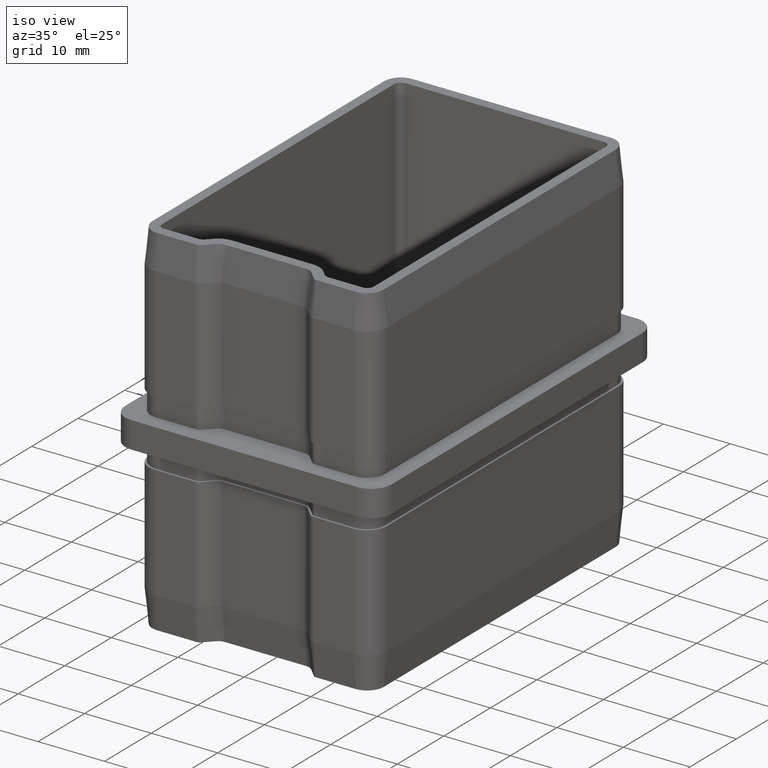
[diagram: clean part render]
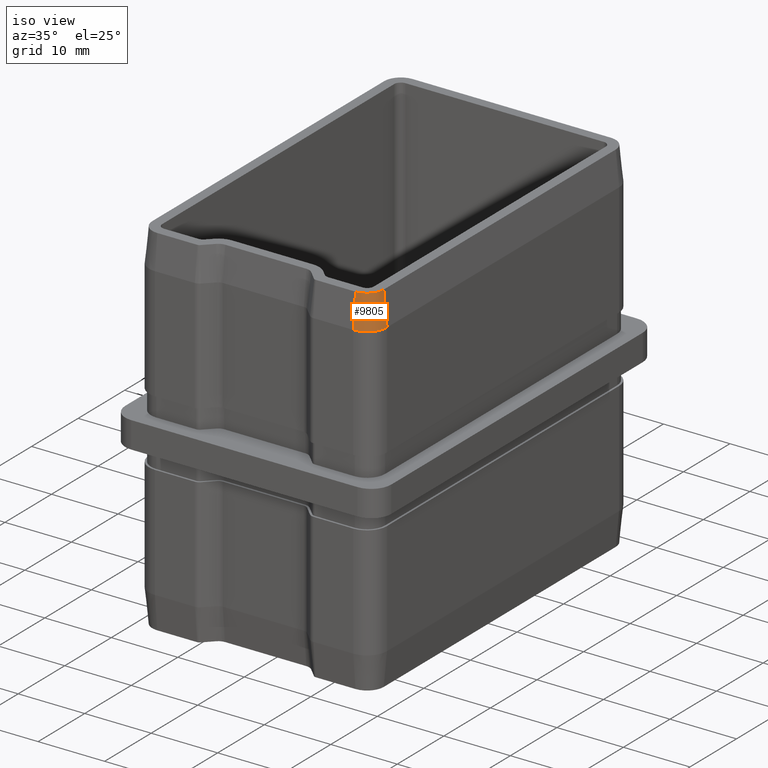
[diagram: same view with one face highlighted and labeled with its STEP entity id]
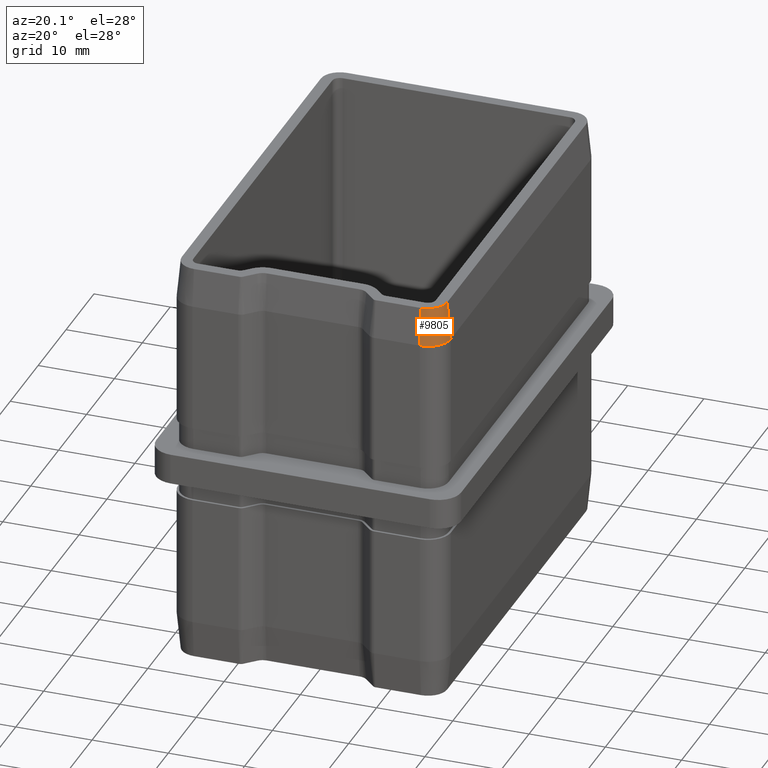
[diagram: same view with one face highlighted and labeled with its STEP entity id]
A machine part, iso view. The second image highlights one B-rep face of the part: STEP entity #9805.
A second angle (auxiliary view) of the same face is appended — the face is thin or edge-on in the first view.
In plain terms, the highlighted conical surface has half-angle 5.711 deg.
Its self-contained STEP definition (entity closure, byte-faithful):
#1188 = EDGE_CURVE ( 'NONE', #2206, #5671, #12820, .T. ) ;
#1836 = LINE ( 'NONE', #20983, #18666 ) ;
#2206 = VERTEX_POINT ( 'NONE', #16369 ) ;
#3975 = CARTESIAN_POINT ( 'NONE',  ( 14.89999999999999700, -27.39999999999998400, 26.99999999999999600 ) ) ;
#4205 = DIRECTION ( 'NONE',  ( -1.000000000000000000, 0.0000000000000000000, 0.0000000000000000000 ) ) ;
#4666 = DIRECTION ( 'NONE',  ( -1.000000000000000000, 0.0000000000000000000, 0.0000000000000000000 ) ) ;
#5648 = LINE ( 'NONE', #3975, #20956 ) ;
#5671 = VERTEX_POINT ( 'NONE', #6476 ) ;
#6137 = DIRECTION ( 'NONE',  ( -0.0000000000000000000, -0.0000000000000000000, -1.000000000000000000 ) ) ;
#6333 = EDGE_CURVE ( 'NONE', #5671, #21296, #5648, .T. ) ;
#6369 = AXIS2_PLACEMENT_3D ( 'NONE', #22255, #16346, #4666 ) ;
#6465 = DIRECTION ( 'NONE',  ( -1.000000000000000000, 0.0000000000000000000, 0.0000000000000000000 ) ) ;
#6476 = CARTESIAN_POINT ( 'NONE',  ( 14.89999999999999700, -27.39999999999998400, 26.99999999999999600 ) ) ;
#6489 = FACE_OUTER_BOUND ( 'NONE', #8505, .T. ) ;
#8505 = EDGE_LOOP ( 'NONE', ( #14117, #17610, #25224, #17095 ) ) ;
#9805 = ADVANCED_FACE ( 'NONE', ( #6489 ), #14769, .T. ) ;
#10970 = CARTESIAN_POINT ( 'NONE',  ( 14.89999999999999700, -27.89999999999999100, 22.00000000000000000 ) ) ;
#11844 = CARTESIAN_POINT ( 'NONE',  ( 17.89999999999999100, -24.89999999999999100, 22.00000000000000000 ) ) ;
#12149 = DIRECTION ( 'NONE',  ( -0.0000000000000000000, -0.0000000000000000000, -1.000000000000000000 ) ) ;
#12820 = CIRCLE ( 'NONE', #23060, 2.499999999999992000 ) ;
#14016 = CARTESIAN_POINT ( 'NONE',  ( 14.89999999999999300, -24.89999999999999500, 26.99999999999999600 ) ) ;
#14117 = ORIENTED_EDGE ( 'NONE', *, *, #22803, .F. ) ;
#14769 = CONICAL_SURFACE ( 'NONE', #19897, 2.499999999999992000, 0.09966865249116353700 ) ;
#14936 = VERTEX_POINT ( 'NONE', #11844 ) ;
#15338 = DIRECTION ( 'NONE',  ( 0.09950371902100041400, 6.092845550116289200E-018, -0.9950371902099889300 ) ) ;
#16041 = CARTESIAN_POINT ( 'NONE',  ( 14.89999999999999300, -24.89999999999999500, 26.99999999999999600 ) ) ;
#16346 = DIRECTION ( 'NONE',  ( -0.0000000000000000000, -0.0000000000000000000, -1.000000000000000000 ) ) ;
#16369 = CARTESIAN_POINT ( 'NONE',  ( 17.39999999999998400, -24.89999999999999100, 26.99999999999999600 ) ) ;
#16782 = EDGE_CURVE ( 'NONE', #14936, #21296, #23687, .T. ) ;
#17095 = ORIENTED_EDGE ( 'NONE', *, *, #16782, .F. ) ;
#17610 = ORIENTED_EDGE ( 'NONE', *, *, #1188, .T. ) ;
#17715 = DIRECTION ( 'NONE',  ( 1.218569110023257800E-017, -0.09950371902100041400, -0.9950371902099889300 ) ) ;
#18666 = VECTOR ( 'NONE', #15338, 1000.000000000000200 ) ;
#19897 = AXIS2_PLACEMENT_3D ( 'NONE', #14016, #12149, #4205 ) ;
#20956 = VECTOR ( 'NONE', #17715, 1000.000000000000200 ) ;
#20983 = CARTESIAN_POINT ( 'NONE',  ( 17.39999999999998400, -24.89999999999999100, 26.99999999999999600 ) ) ;
#21296 = VERTEX_POINT ( 'NONE', #10970 ) ;
#22255 = CARTESIAN_POINT ( 'NONE',  ( 14.89999999999999300, -24.89999999999999500, 22.00000000000000000 ) ) ;
#22803 = EDGE_CURVE ( 'NONE', #2206, #14936, #1836, .T. ) ;
#23060 = AXIS2_PLACEMENT_3D ( 'NONE', #16041, #6137, #6465 ) ;
#23687 = CIRCLE ( 'NONE', #6369, 2.999999999999999100 ) ;
#25224 = ORIENTED_EDGE ( 'NONE', *, *, #6333, .T. ) ;